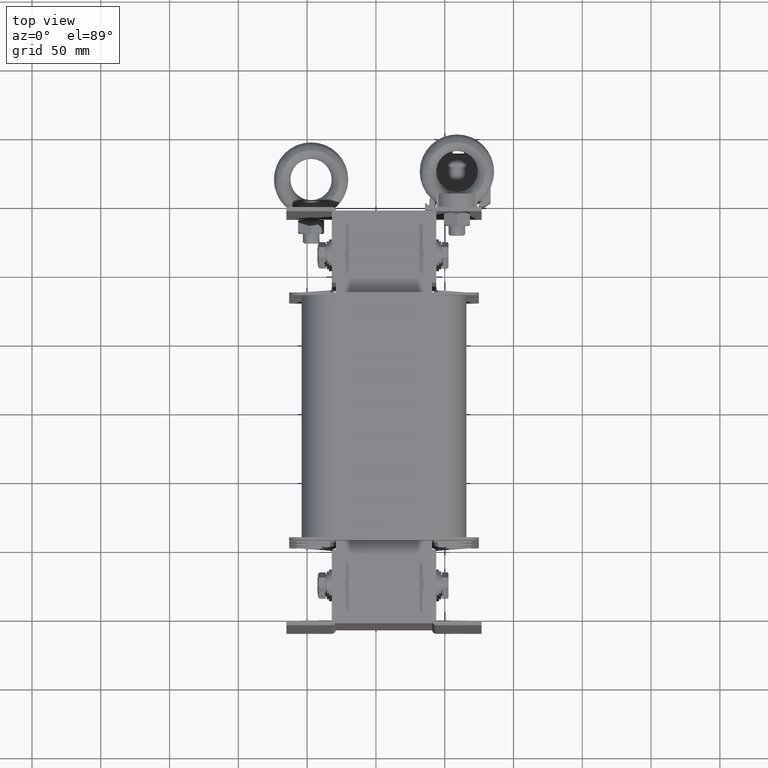
[diagram: clean part render]
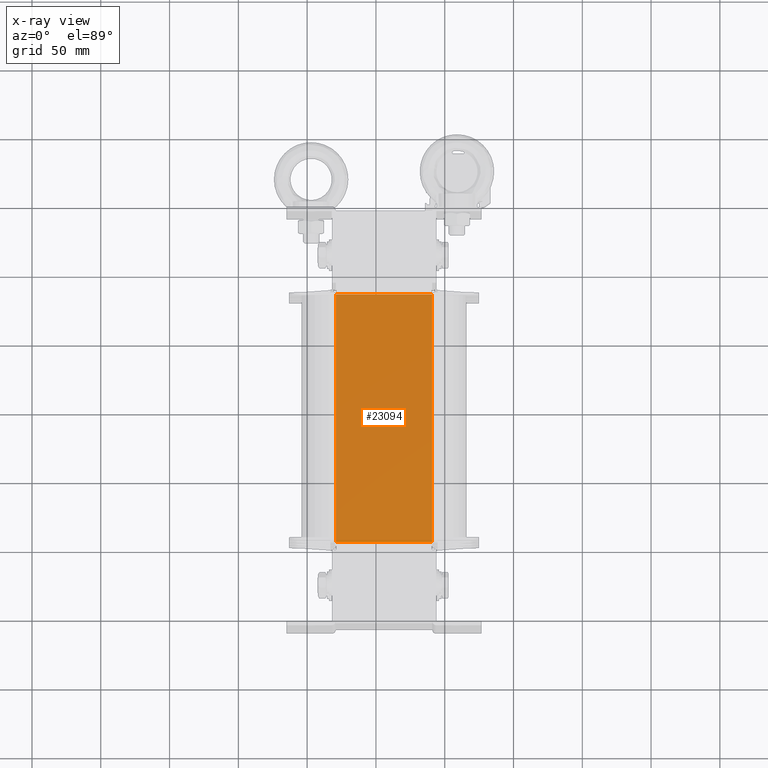
[diagram: x-ray — body ghosted, one internal face saturated and labeled with its STEP entity id]
A machine part, top view, then the same camera in x-ray: the body is ghosted and one INTERNAL B-rep face — a face not visible from any outside direction — is saturated and labeled: STEP entity #23094.
In plain terms, the highlighted planar face has unit normal (0, -0, -1).
Its self-contained STEP definition (entity closure, byte-faithful):
#2018=FACE_OUTER_BOUND('',#3253,.T.);
#3253=EDGE_LOOP('',(#15442,#15443,#15444,#15445));
#4563=LINE('',#33288,#7199);
#4564=LINE('',#33291,#7200);
#4565=LINE('',#33293,#7201);
#4566=LINE('',#33294,#7202);
#7199=VECTOR('',#26671,10.);
#7200=VECTOR('',#26674,10.);
#7201=VECTOR('',#26675,10.);
#7202=VECTOR('',#26676,10.);
#9832=VERTEX_POINT('',#33281);
#9835=VERTEX_POINT('',#33286);
#9836=VERTEX_POINT('',#33290);
#9837=VERTEX_POINT('',#33292);
#12051=EDGE_CURVE('',#9832,#9835,#4563,.T.);
#12052=EDGE_CURVE('',#9836,#9832,#4564,.T.);
#12053=EDGE_CURVE('',#9837,#9835,#4565,.T.);
#12054=EDGE_CURVE('',#9836,#9837,#4566,.T.);
#15442=ORIENTED_EDGE('',*,*,#12052,.T.);
#15443=ORIENTED_EDGE('',*,*,#12051,.T.);
#15444=ORIENTED_EDGE('',*,*,#12053,.F.);
#15445=ORIENTED_EDGE('',*,*,#12054,.F.);
#22219=PLANE('',#24675);
#23094=ADVANCED_FACE('',(#2018),#22219,.T.);
#24675=AXIS2_PLACEMENT_3D('',#33289,#26672,#26673);
#26671=DIRECTION('',(1.,0.,0.));
#26672=DIRECTION('center_axis',(0.,3.94745964311167E-16,-1.));
#26673=DIRECTION('ref_axis',(0.,1.,3.94745964311167E-16));
#26674=DIRECTION('',(0.,1.,3.94745964311167E-16));
#26675=DIRECTION('',(0.,1.,3.94745964311167E-16));
#26676=DIRECTION('',(1.,0.,0.));
#33281=CARTESIAN_POINT('',(0.,240.,240.));
#33286=CARTESIAN_POINT('',(70.,240.,240.));
#33288=CARTESIAN_POINT('',(0.,240.,240.));
#33289=CARTESIAN_POINT('Origin',(0.,59.9999999999999,240.));
#33290=CARTESIAN_POINT('',(0.,59.9999999999999,240.));
#33291=CARTESIAN_POINT('',(0.,59.9999999999999,240.));
#33292=CARTESIAN_POINT('',(70.,59.9999999999999,240.));
#33293=CARTESIAN_POINT('',(70.,59.9999999999999,240.));
#33294=CARTESIAN_POINT('',(0.,59.9999999999999,240.));